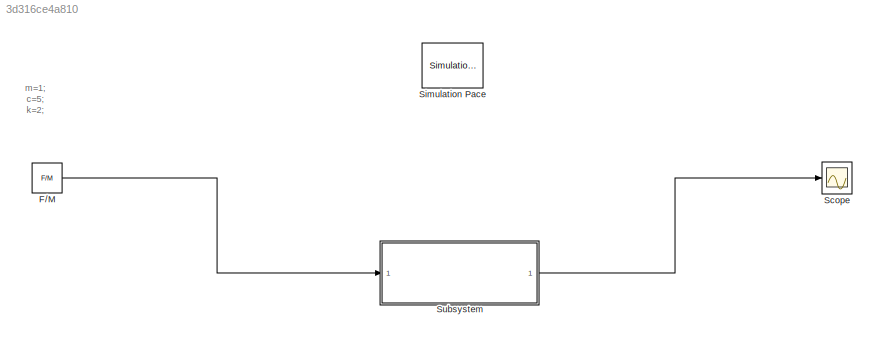
MODEL slx_3d316ce4a810
KIND model
CONFIG AbsTol = auto
CONFIG EnableMultiTasking = off
CONFIG FixedStep = auto
CONFIG MaxStep = auto
CONFIG MinStep = auto
CONFIG RelTol = 1e-3
CONFIG SampleTimeConstraint = Unconstrained
CONFIG SolverName = VariableStepAuto
CONFIG StartTime = 0.0
CONFIG StopTime = 30
BLOCK [Constant] F//M
  Value = F/M
BLOCK [Scope] Scope
  Floating = off
  NumInputPorts = 1
  Ports = [1]
  ScopeSpecificationString = Simulink.scopes.TimeScopeBlockCfg('CurrentConfiguration', extmgr.ConfigurationSet(extmgr.Configuration('Core','General UI',true),extmgr.Configuration('Core','Source UI',true),extmgr.Configuration('Sources','WiredSimulink',true),extmgr.Configuration('Visuals','Time Domain',true,'SerializedDisplays',{struct('MinYLimReal','-0.625','MaxYLimReal','5.62499','YLabelReal','','MinYLimMag','0.00000','MaxYLi...<+1367ch>
BLOCK [Reference] Simulation Pace  REF=aerolibanimutils/Simulation Pace
  AttributesFormatString = %<SleepMode>\n%<SimulationPace> sec/sec
  Ports = []
  SourceBlock = aerolibanimutils/Simulation Pace
  SourceProductBaseCode = AE
  SourceType = Simulation Pace
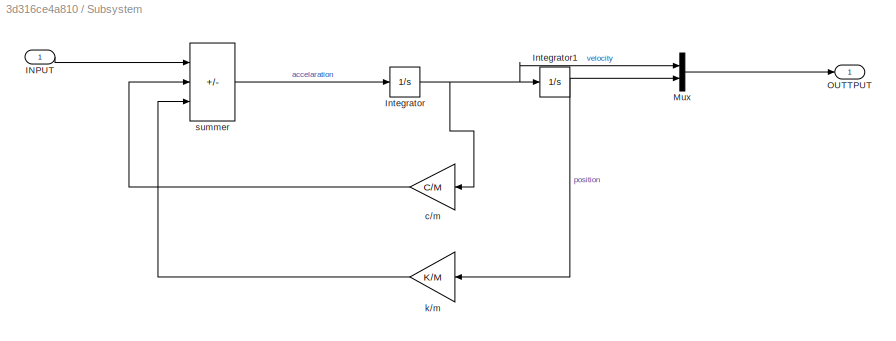
BLOCK [SubSystem] Subsystem
  Ports = [1, 1]
  RequestExecContextInheritance = off
BLOCK [Inport] Subsystem/INPUT
BLOCK [Integrator] Subsystem/Integrator
  Ports = [1, 1]
BLOCK [Integrator] Subsystem/Integrator1
  Ports = [1, 1]
BLOCK [Mux] Subsystem/Mux
  DisplayOption = bar
  Inputs = 2
  Ports = [2, 1]
BLOCK [Outport] Subsystem/OUTTPUT
BLOCK [Gain] Subsystem/c//m
  Gain = C/M
BLOCK [Gain] Subsystem/k//m
  Gain = K/M
BLOCK [Sum] Subsystem/summer
  IconShape = rectangular
  Inputs = +--
  Ports = [3, 1]
ANNOTATION (root): m=1; c=5; k=2;
LINE F//M:1 -> Subsystem:1
LINE Subsystem/INPUT:1 -> Subsystem/summer:1
NET Subsystem/Integrator1:1 -> Subsystem/Mux:2, Subsystem/k//m:1
NET Subsystem/Integrator:1 -> Subsystem/Integrator1:1, Subsystem/Mux:1, Subsystem/c//m:1
LINE Subsystem/Mux:1 -> Subsystem/OUTTPUT:1
LINE Subsystem/c//m:1 -> Subsystem/summer:2
LINE Subsystem/k//m:1 -> Subsystem/summer:3
LINE Subsystem/summer:1 -> Subsystem/Integrator:1
LINE Subsystem:1 -> Scope:1
note: NET lines group one-source signal fan-out (src -> all destinations, sorted); 1:1 wires keep LINE
